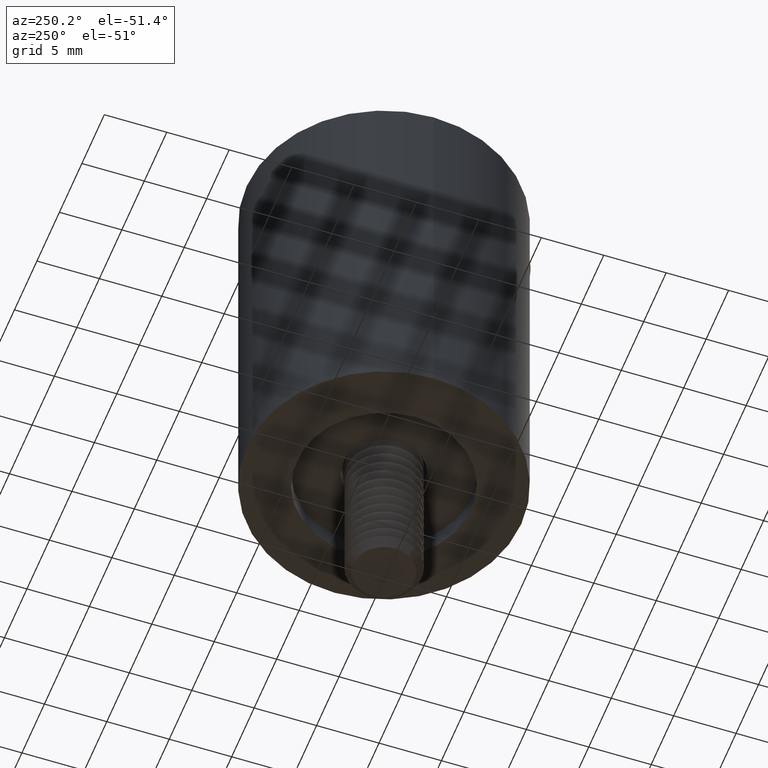
[diagram: clean part render]
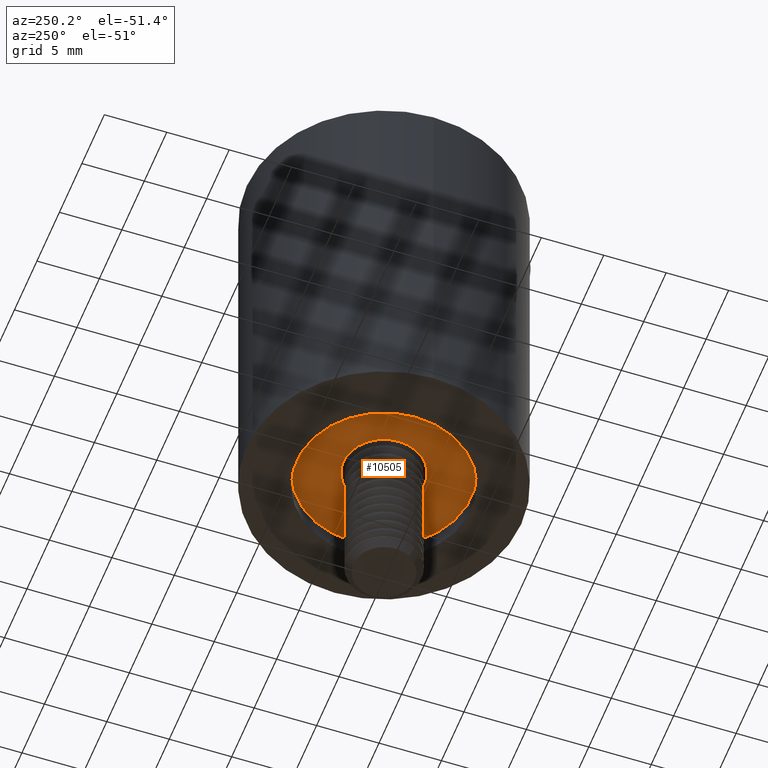
[diagram: same view with one face highlighted and labeled with its STEP entity id]
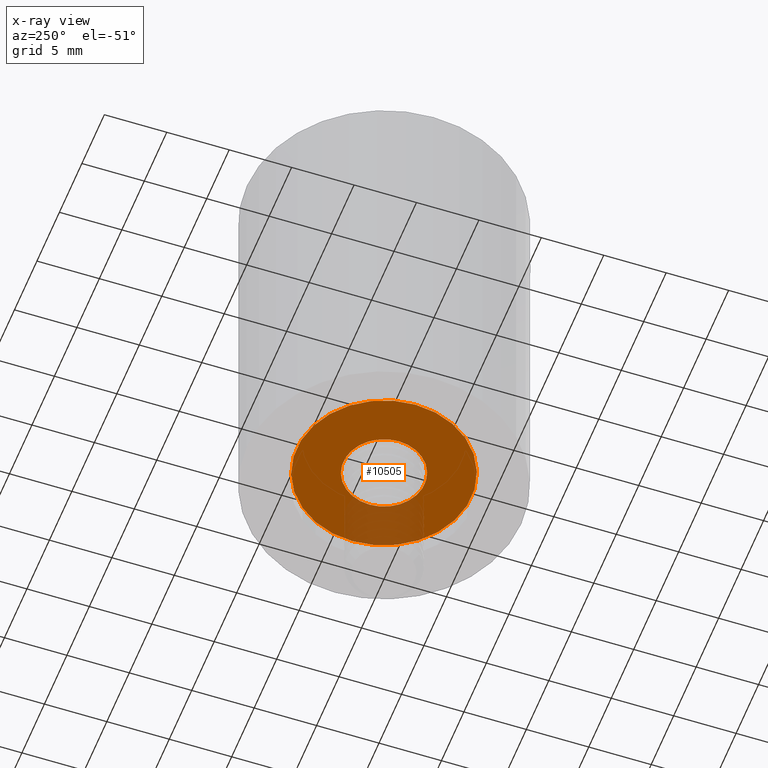
[diagram: x-ray of the same camera — body ghosted, the highlighted face saturated]
A machine part, auxiliary view. The second image highlights one B-rep face of the part: STEP entity #10505.
The next image is the same camera in x-ray: the body ghosted, the highlighted face saturated — about 19% of this face is hidden behind the body in this view.
In plain terms, the highlighted planar face has unit normal (0, 0, -1).
Its self-contained STEP definition (entity closure, byte-faithful):
#1764 = VERTEX_POINT ( 'NONE', #18436 ) ;
#1802 = AXIS2_PLACEMENT_3D ( 'NONE', #10329, #15542, #5414 ) ;
#2092 = CARTESIAN_POINT ( 'NONE',  ( -6.999999999999999112, 0.000000000000000000, 1.500000000000000000 ) ) ;
#2627 = DIRECTION ( 'NONE',  ( -1.000000000000000000, 0.000000000000000000, 0.000000000000000000 ) ) ;
#4493 = EDGE_CURVE ( 'NONE', #14744, #6488, #20904, .T. ) ;
#5082 = ORIENTED_EDGE ( 'NONE', *, *, #21568, .F. ) ;
#5414 = DIRECTION ( 'NONE',  ( -1.000000000000000000, 0.000000000000000000, 0.000000000000000000 ) ) ;
#5430 = CIRCLE ( 'NONE', #1802, 3.250000000000000000 ) ;
#6155 = VERTEX_POINT ( 'NONE', #8068 ) ;
#6462 = AXIS2_PLACEMENT_3D ( 'NONE', #7513, #21226, #19392 ) ;
#6488 = VERTEX_POINT ( 'NONE', #12768 ) ;
#6599 = DIRECTION ( 'NONE',  ( -0.000000000000000000, 0.000000000000000000, -1.000000000000000000 ) ) ;
#6986 = DIRECTION ( 'NONE',  ( -0.000000000000000000, -0.000000000000000000, -1.000000000000000000 ) ) ;
#7513 = CARTESIAN_POINT ( 'NONE',  ( 0.000000000000000000, 0.000000000000000000, 1.500000000000000000 ) ) ;
#8007 = AXIS2_PLACEMENT_3D ( 'NONE', #9799, #6599, #11786 ) ;
#8068 = CARTESIAN_POINT ( 'NONE',  ( 3.250000000000000000, 3.980102097228897738E-16, 1.500000000000000000 ) ) ;
#8941 = AXIS2_PLACEMENT_3D ( 'NONE', #14248, #17611, #2627 ) ;
#9357 = ORIENTED_EDGE ( 'NONE', *, *, #14557, .F. ) ;
#9799 = CARTESIAN_POINT ( 'NONE',  ( 0.000000000000000000, 3.250000000000000000, 1.500000000000000000 ) ) ;
#9882 = FACE_BOUND ( 'NONE', #20373, .T. ) ;
#10329 = CARTESIAN_POINT ( 'NONE',  ( 0.000000000000000000, 0.000000000000000000, 1.500000000000000000 ) ) ;
#10505 = ADVANCED_FACE ( 'NONE', ( #14365, #9882 ), #21592, .T. ) ;
#11520 = ORIENTED_EDGE ( 'NONE', *, *, #21105, .T. ) ;
#11786 = DIRECTION ( 'NONE',  ( -1.000000000000000000, 0.000000000000000000, 0.000000000000000000 ) ) ;
#12743 = ORIENTED_EDGE ( 'NONE', *, *, #4493, .T. ) ;
#12768 = CARTESIAN_POINT ( 'NONE',  ( 6.999999999999999112, 8.572527594031472204E-16, 1.500000000000000000 ) ) ;
#14248 = CARTESIAN_POINT ( 'NONE',  ( 0.000000000000000000, 0.000000000000000000, 1.500000000000000000 ) ) ;
#14365 = FACE_OUTER_BOUND ( 'NONE', #21233, .T. ) ;
#14557 = EDGE_CURVE ( 'NONE', #6155, #1764, #14793, .T. ) ;
#14744 = VERTEX_POINT ( 'NONE', #2092 ) ;
#14793 = CIRCLE ( 'NONE', #21096, 3.250000000000000000 ) ;
#15542 = DIRECTION ( 'NONE',  ( -0.000000000000000000, -0.000000000000000000, -1.000000000000000000 ) ) ;
#17169 = DIRECTION ( 'NONE',  ( -1.000000000000000000, 0.000000000000000000, 0.000000000000000000 ) ) ;
#17611 = DIRECTION ( 'NONE',  ( -0.000000000000000000, -0.000000000000000000, -1.000000000000000000 ) ) ;
#18436 = CARTESIAN_POINT ( 'NONE',  ( -3.250000000000000000, 0.000000000000000000, 1.500000000000000000 ) ) ;
#18784 = CARTESIAN_POINT ( 'NONE',  ( 0.000000000000000000, 0.000000000000000000, 1.500000000000000000 ) ) ;
#19392 = DIRECTION ( 'NONE',  ( -1.000000000000000000, 0.000000000000000000, 0.000000000000000000 ) ) ;
#20373 = EDGE_LOOP ( 'NONE', ( #5082, #9357 ) ) ;
#20904 = CIRCLE ( 'NONE', #8941, 6.999999999999999112 ) ;
#21096 = AXIS2_PLACEMENT_3D ( 'NONE', #18784, #6986, #17169 ) ;
#21105 = EDGE_CURVE ( 'NONE', #6488, #14744, #21305, .T. ) ;
#21226 = DIRECTION ( 'NONE',  ( -0.000000000000000000, -0.000000000000000000, -1.000000000000000000 ) ) ;
#21233 = EDGE_LOOP ( 'NONE', ( #12743, #11520 ) ) ;
#21305 = CIRCLE ( 'NONE', #6462, 6.999999999999999112 ) ;
#21568 = EDGE_CURVE ( 'NONE', #1764, #6155, #5430, .T. ) ;
#21592 = PLANE ( 'NONE',  #8007 ) ;